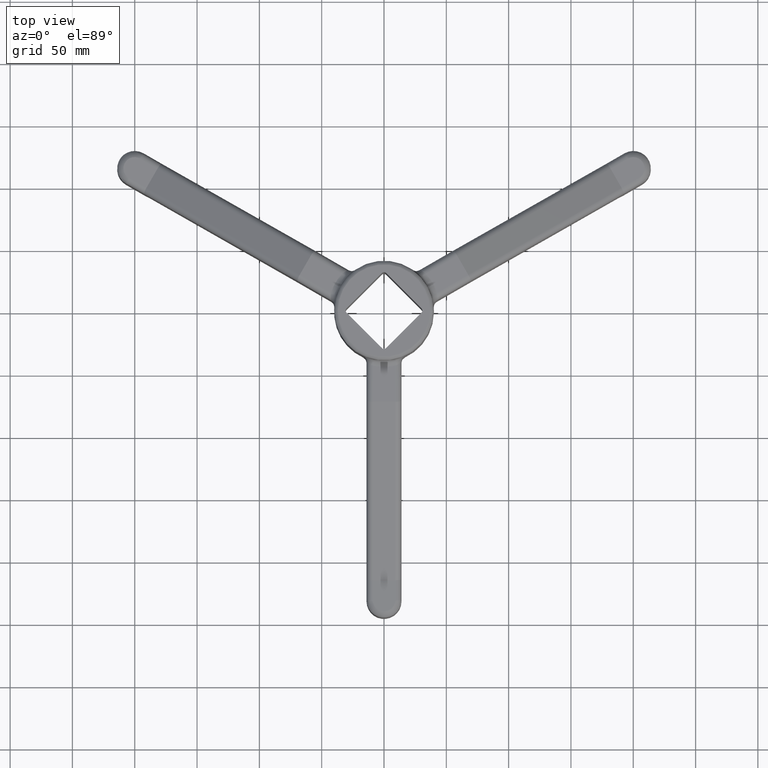
[diagram: clean part render]
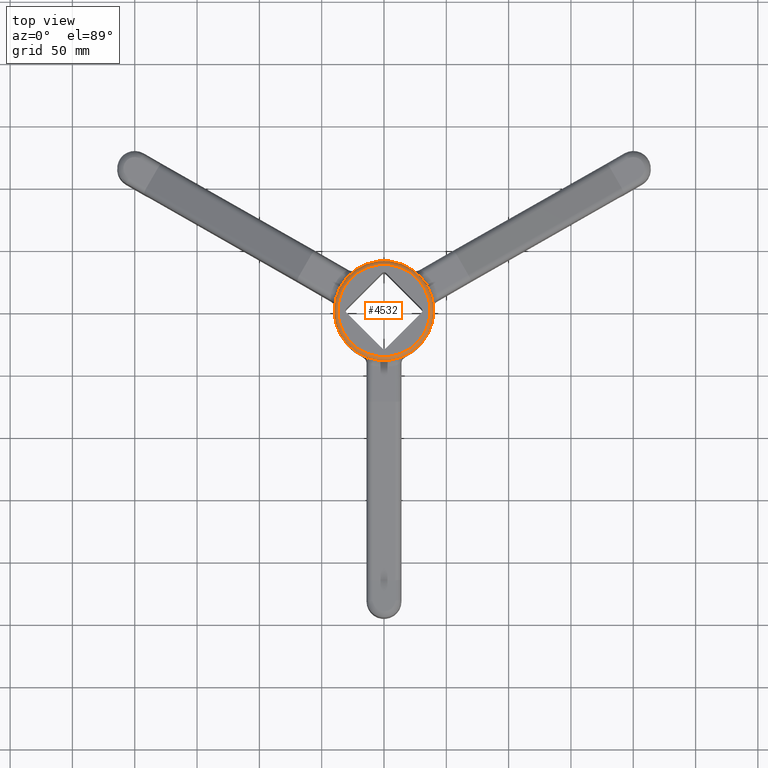
[diagram: same view with one face highlighted and labeled with its STEP entity id]
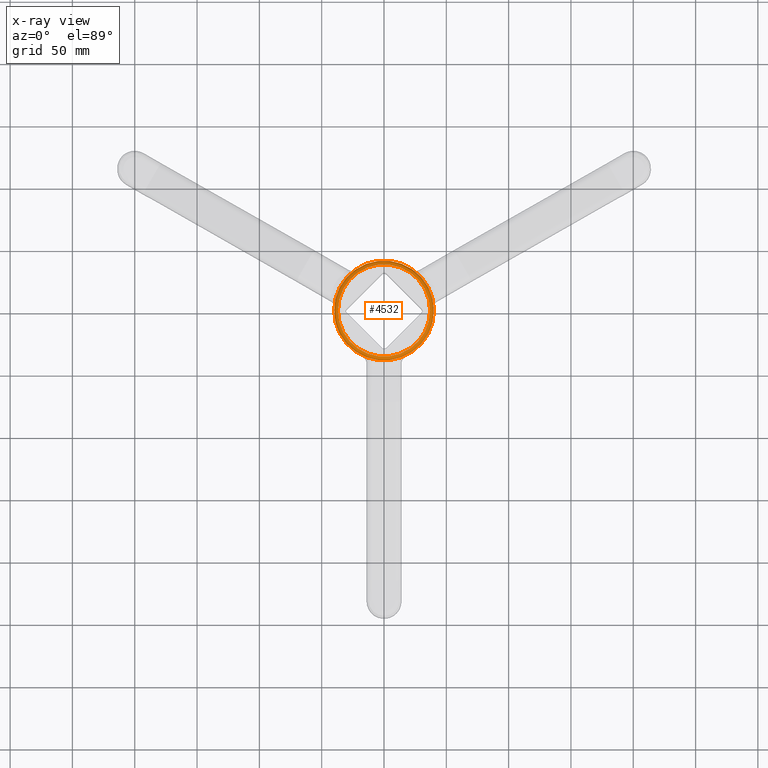
[diagram: x-ray of the same camera — body ghosted, the highlighted face saturated]
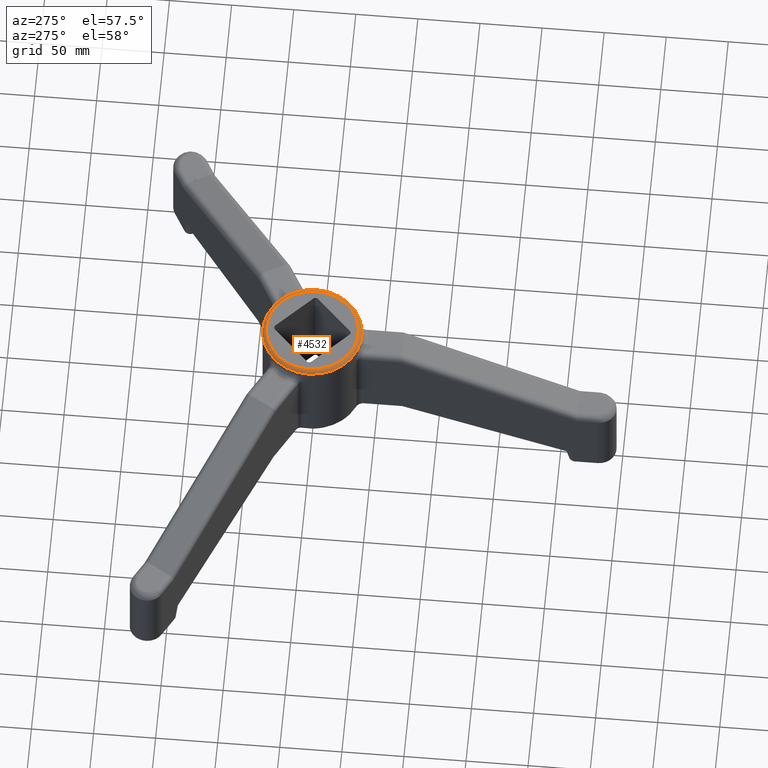
[diagram: same view with one face highlighted and labeled with its STEP entity id]
A machine part, top view. The second image highlights one B-rep face of the part: STEP entity #4532.
The next image is the same camera in x-ray: the body ghosted, the highlighted face saturated — about 0% of this face is hidden behind the body in this view.
A second angle (auxiliary view) of the same face is appended — the face is thin or edge-on in the first view.
In plain terms, the highlighted face is a freeform B-spline surface patch.
Its self-contained STEP definition (entity closure, byte-faithful):
#4211=CARTESIAN_POINT('',(37.0,0.0,0.0));
#4212=VERTEX_POINT('',#4211);
#4213=CARTESIAN_POINT('',(-37.0,0.0,0.0));
#4214=VERTEX_POINT('',#4213);
#4215=CARTESIAN_POINT('',(0.0,0.0,0.0));
#4216=DIRECTION('',(0.0,6.123234E-017,1.0));
#4217=DIRECTION('',(1.0,0.0,0.0));
#4218=AXIS2_PLACEMENT_3D('',#4215,#4216,#4217);
#4219=CIRCLE('',#4218,37.0);
#4220=EDGE_CURVE('',#4212,#4214,#4219,.T.);
#4222=CARTESIAN_POINT('',(0.0,0.0,0.0));
#4223=DIRECTION('',(0.0,6.123234E-017,1.0));
#4224=DIRECTION('',(1.0,0.0,0.0));
#4225=AXIS2_PLACEMENT_3D('',#4222,#4223,#4224);
#4226=CIRCLE('',#4225,37.0);
#4227=EDGE_CURVE('',#4214,#4212,#4226,.T.);
#4242=CARTESIAN_POINT('',(37.0,0.0,0.0));
#4243=CARTESIAN_POINT('',(37.390180644032256,-1.462943E-033,-2.389167E-017));
#4244=CARTESIAN_POINT('',(38.179083452029829,-9.559368E-018,-0.156116328347340));
#4245=CARTESIAN_POINT('',(39.176238734418838,-5.044083E-017,-0.823761265581155));
#4246=CARTESIAN_POINT('',(39.843883671652662,-1.114990E-016,-1.820916547970177));
#4247=CARTESIAN_POINT('',(40.0,-1.598053E-016,-2.609819355967743));
#4248=CARTESIAN_POINT('',(40.0,-1.836970E-016,-3.0));
#4249=CARTESIAN_POINT('',(37.0,2.417756128129161,-1.487460E-016));
#4250=CARTESIAN_POINT('',(37.390180644032256,2.443252388755820,-1.787957E-016));
#4251=CARTESIAN_POINT('',(38.179083452029829,2.494803053581075,-0.156116328347340));
#4252=CARTESIAN_POINT('',(39.176238734418838,2.559961926410599,-0.823761265581155));
#4253=CARTESIAN_POINT('',(39.843883671652662,2.603589024746045,-1.820916547970177));
#4254=CARTESIAN_POINT('',(40.0,2.613790408788283,-2.609819355967743));
#4255=CARTESIAN_POINT('',(40.0,2.613790408788283,-3.0));
#4256=CARTESIAN_POINT('',(36.523417015287194,7.265900440590730,-3.674519E-016));
#4257=CARTESIAN_POINT('',(36.908571890240800,7.342522432844352,-8.444300E-016));
#4258=CARTESIAN_POINT('',(37.687313139998281,7.497443764201455,-0.156116328347340));
#4259=CARTESIAN_POINT('',(38.671624442908794,7.693260818408145,-0.823761265581157));
#4260=CARTESIAN_POINT('',(39.330669698604403,7.824370052019105,-1.820916547970179));
#4261=CARTESIAN_POINT('',(39.484775151661822,7.855027503341328,-2.609819355967745));
#4262=CARTESIAN_POINT('',(39.484775151661822,7.855027503341328,-3.000000000000001));
#4263=CARTESIAN_POINT('',(34.755453753897456,13.089692557015482,-1.024179E-015));
#4264=CARTESIAN_POINT('',(35.121964708744187,13.227728899504143,-5.295534E-016));
#4265=CARTESIAN_POINT('',(35.863009980627425,13.506823364748861,-0.156116328347339));
#4266=CARTESIAN_POINT('',(36.799674421236219,13.859592447940106,-0.823761265581154));
#4267=CARTESIAN_POINT('',(37.426817738534965,14.095788852416829,-1.820916547970176));
#4268=CARTESIAN_POINT('',(37.573463517726985,14.151018980557284,-2.609819355967744));
#4269=CARTESIAN_POINT('',(37.573463517726985,14.151018980557284,-3.000000000000001));
#4270=CARTESIAN_POINT('',(32.683421641475491,17.469693304101007,-7.474769E-016));
#4271=CARTESIAN_POINT('',(33.028082141617340,17.653918606383176,-2.900526E-016));
#4272=CARTESIAN_POINT('',(33.724948171561351,18.026402122665925,-0.156116328347339));
#4273=CARTESIAN_POINT('',(34.605771050922044,18.497212851311865,-0.823761265581153));
#4274=CARTESIAN_POINT('',(35.195525672284440,18.812443994271625,-1.820916547970177));
#4275=CARTESIAN_POINT('',(35.333428801595133,18.886154923352436,-2.609819355967744));
#4276=CARTESIAN_POINT('',(35.333428801595133,18.886154923352436,-3.000000000000001));
#4277=CARTESIAN_POINT('',(30.192962802888978,21.625716695433379,-1.595709E-015));
#4278=CARTESIAN_POINT('',(30.511360361582852,21.853769021592388,-1.558981E-015));
#4279=CARTESIAN_POINT('',(31.155125581500844,22.314866011483943,-0.156116328347341));
#4280=CARTESIAN_POINT('',(31.968830239605573,22.897682163870410,-0.823761265581157));
#4281=CARTESIAN_POINT('',(32.513645881644450,23.287906495377420,-1.820916547970177));
#4282=CARTESIAN_POINT('',(32.641040867988089,23.379153184252303,-2.609819355967745));
#4283=CARTESIAN_POINT('',(32.641040867988089,23.379153184252303,-3.000000000000001));
#4284=CARTESIAN_POINT('',(26.331197878916409,26.332368396091731,-1.880487E-015));
#4285=CARTESIAN_POINT('',(26.608871493687658,26.610054354461507,-2.096223E-015));
#4286=CARTESIAN_POINT('',(27.170297330028657,27.171505148215644,-0.156116328347342));
#4287=CARTESIAN_POINT('',(27.879926872098707,27.881166235890689,-0.823761265581157));
#4288=CARTESIAN_POINT('',(28.355059060076020,28.356319545215726,-1.820916547970180));
#4289=CARTESIAN_POINT('',(28.466159869098817,28.467425293072132,-2.609819355967745));
#4290=CARTESIAN_POINT('',(28.466159869098817,28.467425293072132,-3.000000000000002));
#4291=CARTESIAN_POINT('',(20.688715596498181,30.962483522967680,-1.597358E-015));
#4292=CARTESIAN_POINT('',(20.906886849893905,31.288996003017132,-1.406155E-015));
#4293=CARTESIAN_POINT('',(21.348005385784191,31.949168710958965,-0.156116328347341));
#4294=CARTESIAN_POINT('',(21.905569224781267,32.783612062332203,-0.823761265581157));
#4295=CARTESIAN_POINT('',(22.278885879534585,33.342313288502346,-1.820916547970178));
#4296=CARTESIAN_POINT('',(22.366179023241280,33.472955159965068,-2.609819355967746));
#4297=CARTESIAN_POINT('',(22.366179023241280,33.472955159965068,-3.000000000000003));
#4298=CARTESIAN_POINT('',(14.250531465442570,34.403951443202601,-2.388224E-015));
#4299=CARTESIAN_POINT('',(14.400809345036848,34.766755657563778,-1.804272E-015));
#4300=CARTESIAN_POINT('',(14.704654866348886,35.500306303503102,-0.156116328347341));
#4301=CARTESIAN_POINT('',(15.088708723852040,36.427497706655643,-0.823761265581153));
#4302=CARTESIAN_POINT('',(15.345851836981611,37.048298355355435,-1.820916547970177));
#4303=CARTESIAN_POINT('',(15.405979962640611,37.193461019678502,-2.609819355967744));
#4304=CARTESIAN_POINT('',(15.405979962640611,37.193461019678502,-3.000000000000001));
#4305=CARTESIAN_POINT('',(7.264880526781480,36.522966921727516,-2.172423E-015));
#4306=CARTESIAN_POINT('',(7.341491763612750,36.908117050254234,-2.636577E-015));
#4307=CARTESIAN_POINT('',(7.496391348676125,37.686848703252984,-0.156116328347342));
#4308=CARTESIAN_POINT('',(7.692180916060045,38.671147876077811,-0.823761265581160));
#4309=CARTESIAN_POINT('',(7.823271745879357,39.330185010079184,-1.820916547970181));
#4310=CARTESIAN_POINT('',(7.853924893817817,39.484288564029740,-2.609819355967748));
#4311=CARTESIAN_POINT('',(7.853924893817817,39.484288564029740,-3.000000000000004));
#4312=CARTESIAN_POINT('',(-0.000002084987977,37.238513119404544,-2.244760E-015));
#4313=CARTESIAN_POINT('',(-0.000002106975057,37.631208985127046,-1.997927E-015));
#4314=CARTESIAN_POINT('',(-0.000002151430539,38.425197297709545,-0.156116328347342));
#4315=CARTESIAN_POINT('',(-0.000002207621262,39.428780542718393,-0.823761265581156));
#4316=CARTESIAN_POINT('',(-0.000002245243742,40.100729319861244,-1.820916547970179));
#4317=CARTESIAN_POINT('',(-0.000002254041056,40.257852020977886,-2.609819355967745));
#4318=CARTESIAN_POINT('',(-0.000002254041056,40.257852020977886,-3.000000000000002));
#4319=CARTESIAN_POINT('',(-7.264872186829554,36.522980600654307,-2.171215E-015));
#4320=CARTESIAN_POINT('',(-7.341483335712505,36.908130873431091,-2.664465E-015));
#4321=CARTESIAN_POINT('',(-7.496382742953951,37.686862818087775,-0.156116328347342));
#4322=CARTESIAN_POINT('',(-7.692172085574976,38.671162359561635,-0.823761265581159));
#4323=CARTESIAN_POINT('',(-7.823262764904368,39.330199740391819,-1.820916547970180));
#4324=CARTESIAN_POINT('',(-7.853915877653573,39.484303352058696,-2.609819355967746));
#4325=CARTESIAN_POINT('',(-7.853915877653573,39.484303352058696,-3.000000000000002));
#4326=CARTESIAN_POINT('',(-14.250560655274246,34.403896727495379,-2.393058E-015));
#4327=CARTESIAN_POINT('',(-14.400838842687643,34.766700364856284,-1.692723E-015));
#4328=CARTESIAN_POINT('',(-14.704684986376437,35.500249844163854,-0.156116328347341));
#4329=CARTESIAN_POINT('',(-15.088739630549721,36.427439772720277,-0.823761265581153));
#4330=CARTESIAN_POINT('',(-15.345883270393994,37.048239434104794,-1.820916547970177));
#4331=CARTESIAN_POINT('',(-15.406011519215399,37.193401867562592,-2.609819355967745));
#4332=CARTESIAN_POINT('',(-15.406011519215399,37.193401867562592,-3.000000000000003));
#4333=CARTESIAN_POINT('',(-20.688607177123394,30.962688706869827,-1.579229E-015));
#4334=CARTESIAN_POINT('',(-20.906777287190973,31.289203350670270,-1.824463E-015));
#4335=CARTESIAN_POINT('',(-21.347893511396151,31.949380433481192,-0.156116328347342));
#4336=CARTESIAN_POINT('',(-21.905454428475597,32.783829314589902,-0.823761265581157));
#4337=CARTESIAN_POINT('',(-22.278769126860066,33.342534243192283,-1.820916547970180));
#4338=CARTESIAN_POINT('',(-22.366061813106374,33.473176980399799,-2.609819355967747));
#4339=CARTESIAN_POINT('',(-22.366061813106374,33.473176980399799,-3.000000000000002));
#4340=CARTESIAN_POINT('',(-26.331602366583869,26.331602376190403,-1.948166E-015));
#4341=CARTESIAN_POINT('',(-26.609280246848598,26.609280256556438,-1.858262E-015));
#4342=CARTESIAN_POINT('',(-27.170714707553280,27.170714717465955,-0.156116328347341));
#4343=CARTESIAN_POINT('',(-27.880355150623725,27.880355160795276,-0.823761265581156));
#4344=CARTESIAN_POINT('',(-28.355494637361673,28.355494647706585,-1.820916547970179));
#4345=CARTESIAN_POINT('',(-28.466597153063638,28.466597163449084,-2.609819355967745));
#4346=CARTESIAN_POINT('',(-28.466597153063638,28.466597163449084,-3.000000000000003));
#4347=CARTESIAN_POINT('',(-30.962688779954686,20.688607211782141,-1.286247E-015));
#4348=CARTESIAN_POINT('',(-31.289203424525844,20.906777322215216,-1.985223E-015));
#4349=CARTESIAN_POINT('',(-31.949380508895068,21.347893547159373,-0.156116328347342));
#4350=CARTESIAN_POINT('',(-32.783829391973399,21.905454465172891,-0.823761265581160));
#4351=CARTESIAN_POINT('',(-33.342534321894576,22.278769164182759,-1.820916547970180));
#4352=CARTESIAN_POINT('',(-33.473177059410460,22.366061850575296,-2.609819355967745));
#4353=CARTESIAN_POINT('',(-33.473177059410460,22.366061850575296,-3.000000000000000));
#4354=CARTESIAN_POINT('',(-34.403896444762395,14.250560507032731,-9.004505E-016));
#4355=CARTESIAN_POINT('',(-34.766700079141764,14.400838692882855,-1.027678E-016));
#4356=CARTESIAN_POINT('',(-35.500249552420982,14.704684833410894,-0.156116328347340));
#4357=CARTESIAN_POINT('',(-36.427439473357715,15.088739473589039,-0.823761265581151));
#4358=CARTESIAN_POINT('',(-37.048239129640464,15.345883110758368,-1.820916547970176));
#4359=CARTESIAN_POINT('',(-37.193401561905311,15.406011358954297,-2.609819355967743));
#4360=CARTESIAN_POINT('',(-37.193401561905311,15.406011358954297,-3.000000000000002));
#4361=CARTESIAN_POINT('',(-36.522981658501365,7.264872745136930,-4.410212E-016));
#4362=CARTESIAN_POINT('',(-36.908131942433592,7.341483899907470,-8.699207E-016));
#4363=CARTESIAN_POINT('',(-37.686863909645382,7.496383319052971,-0.156116328347340));
#4364=CARTESIAN_POINT('',(-38.671163479628362,7.692172676720467,-0.823761265581158));
#4365=CARTESIAN_POINT('',(-39.330200879546830,7.823263366124213,-1.820916547970178));
#4366=CARTESIAN_POINT('',(-39.484304495677137,7.853916481229115,-2.609819355967745));
#4367=CARTESIAN_POINT('',(-39.484304495677137,7.853916481229115,-3.0));
#4368=CARTESIAN_POINT('',(-37.238509170749303,1.576517E-014,-6.902533E-031));
#4369=CARTESIAN_POINT('',(-37.631204994831577,1.532108E-014,1.127035E-016));
#4370=CARTESIAN_POINT('',(-38.425193223222045,1.598721E-014,-0.156116328347340));
#4371=CARTESIAN_POINT('',(-39.428776361814059,1.554312E-014,-0.823761265581154));
#4372=CARTESIAN_POINT('',(-40.100725067705575,1.509903E-014,-1.820916547970176));
#4373=CARTESIAN_POINT('',(-40.257847752161418,1.687539E-014,-2.609819355967742));
#4374=CARTESIAN_POINT('',(-40.257847752161418,1.687539E-014,-3.000000000000000));
#4375=CARTESIAN_POINT('',(-36.522981658501365,-7.264872745136943,4.410212E-016));
#4376=CARTESIAN_POINT('',(-36.908131942433599,-7.341483899907479,2.757565E-016));
#4377=CARTESIAN_POINT('',(-37.686863909645382,-7.496383319052983,-0.156116328347339));
#4378=CARTESIAN_POINT('',(-38.671163479628369,-7.692172676720476,-0.823761265581155));
#4379=CARTESIAN_POINT('',(-39.330200879546830,-7.823263366124222,-1.820916547970177));
#4380=CARTESIAN_POINT('',(-39.484304495677151,-7.853916481229129,-2.609819355967743));
#4381=CARTESIAN_POINT('',(-39.484304495677151,-7.853916481229129,-3.000000000000000));
#4382=CARTESIAN_POINT('',(-34.403896444762395,-14.250560507032704,9.004505E-016));
#4383=CARTESIAN_POINT('',(-34.766700079141756,-14.400838692882836,6.435939E-016));
#4384=CARTESIAN_POINT('',(-35.500249552420968,-14.704684833410870,-0.156116328347339));
#4385=CARTESIAN_POINT('',(-36.427439473357708,-15.088739473589024,-0.823761265581154));
#4386=CARTESIAN_POINT('',(-37.048239129640478,-15.345883110758354,-1.820916547970177));
#4387=CARTESIAN_POINT('',(-37.193401561905297,-15.406011358954274,-2.609819355967743));
#4388=CARTESIAN_POINT('',(-37.193401561905297,-15.406011358954274,-2.999999999999999));
#4389=CARTESIAN_POINT('',(-30.962688779954703,-20.688607211782127,1.286247E-015));
#4390=CARTESIAN_POINT('',(-31.289203424525869,-20.906777322215195,1.232485E-015));
#4391=CARTESIAN_POINT('',(-31.949380508895079,-21.347893547159359,-0.156116328347339));
#4392=CARTESIAN_POINT('',(-32.783829391973441,-21.905454465172859,-0.823761265581153));
#4393=CARTESIAN_POINT('',(-33.342534321894590,-22.278769164182734,-1.820916547970176));
#4394=CARTESIAN_POINT('',(-33.473177059410489,-22.366061850575274,-2.609819355967741));
#4395=CARTESIAN_POINT('',(-33.473177059410489,-22.366061850575274,-2.999999999999998));
#4396=CARTESIAN_POINT('',(-26.331602366583844,-26.331602376190421,1.948166E-015));
#4397=CARTESIAN_POINT('',(-26.609280246848577,-26.609280256556463,2.056100E-015));
#4398=CARTESIAN_POINT('',(-27.170714707553273,-27.170714717465970,-0.156116328347337));
#4399=CARTESIAN_POINT('',(-27.880355150623693,-27.880355160795311,-0.823761265581153));
#4400=CARTESIAN_POINT('',(-28.355494637361659,-28.355494647706600,-1.820916547970174));
#4401=CARTESIAN_POINT('',(-28.466597153063621,-28.466597163449109,-2.609819355967742));
#4402=CARTESIAN_POINT('',(-28.466597153063621,-28.466597163449109,-2.999999999999999));
#4403=CARTESIAN_POINT('',(-20.688607177123433,-30.962688706869788,1.579229E-015));
#4404=CARTESIAN_POINT('',(-20.906777287191012,-31.289203350670238,1.940388E-015));
#4405=CARTESIAN_POINT('',(-21.347893511396187,-31.949380433481167,-0.156116328347337));
#4406=CARTESIAN_POINT('',(-21.905454428475636,-32.783829314589866,-0.823761265581152));
#4407=CARTESIAN_POINT('',(-22.278769126860119,-33.342534243192262,-1.820916547970173));
#4408=CARTESIAN_POINT('',(-22.366061813106413,-33.473176980399771,-2.609819355967741));
#4409=CARTESIAN_POINT('',(-22.366061813106413,-33.473176980399771,-2.999999999999998));
#4410=CARTESIAN_POINT('',(-14.250560655274237,-34.403896727495386,2.393058E-015));
#4411=CARTESIAN_POINT('',(-14.400838842687634,-34.766700364856284,2.146792E-015));
#4412=CARTESIAN_POINT('',(-14.704684986376433,-35.500249844163854,-0.156116328347337));
#4413=CARTESIAN_POINT('',(-15.088739630549714,-36.427439772720263,-0.823761265581154));
#4414=CARTESIAN_POINT('',(-15.345883270393980,-37.048239434104815,-1.820916547970175));
#4415=CARTESIAN_POINT('',(-15.406011519215394,-37.193401867562578,-2.609819355967741));
#4416=CARTESIAN_POINT('',(-15.406011519215394,-37.193401867562578,-2.999999999999997));
#4417=CARTESIAN_POINT('',(-7.264872186829575,-36.522980600654293,2.171215E-015));
#4418=CARTESIAN_POINT('',(-7.341483335712527,-36.908130873431084,1.989910E-015));
#4419=CARTESIAN_POINT('',(-7.496382742953970,-37.686862818087761,-0.156116328347338));
#4420=CARTESIAN_POINT('',(-7.692172085574995,-38.671162359561642,-0.823761265581154));
#4421=CARTESIAN_POINT('',(-7.823262764904396,-39.330199740391798,-1.820916547970175));
#4422=CARTESIAN_POINT('',(-7.853915877653595,-39.484303352058689,-2.609819355967742));
#4423=CARTESIAN_POINT('',(-7.853915877653595,-39.484303352058689,-2.999999999999998));
#4424=CARTESIAN_POINT('',(-0.000002084988021,-37.238513119404551,2.244760E-015));
#4425=CARTESIAN_POINT('',(-0.000002106975101,-37.631208985127053,2.411032E-015));
#4426=CARTESIAN_POINT('',(-0.000002151430585,-38.425197297709559,-0.156116328347337));
#4427=CARTESIAN_POINT('',(-0.000002207621310,-39.428780542718386,-0.823761265581151));
#4428=CARTESIAN_POINT('',(-0.000002245243787,-40.100729319861244,-1.820916547970173));
#4429=CARTESIAN_POINT('',(-0.000002254041104,-40.257852020977886,-2.609819355967740));
#4430=CARTESIAN_POINT('',(-0.000002254041104,-40.257852020977886,-2.999999999999996));
#4431=CARTESIAN_POINT('',(7.264880526781510,-36.522966921727487,2.172423E-015));
#4432=CARTESIAN_POINT('',(7.341491763612780,-36.908117050254212,1.891838E-015));
#4433=CARTESIAN_POINT('',(7.496391348676157,-37.686848703252963,-0.156116328347338));
#4434=CARTESIAN_POINT('',(7.692180916060078,-38.671147876077789,-0.823761265581154));
#4435=CARTESIAN_POINT('',(7.823271745879382,-39.330185010079163,-1.820916547970176));
#4436=CARTESIAN_POINT('',(7.853924893817847,-39.484288564029725,-2.609819355967741));
#4437=CARTESIAN_POINT('',(7.853924893817847,-39.484288564029725,-2.999999999999999));
#4438=CARTESIAN_POINT('',(14.250531465442567,-34.403951443202622,2.388224E-015));
#4439=CARTESIAN_POINT('',(14.400809345036848,-34.766755657563785,2.318459E-015));
#4440=CARTESIAN_POINT('',(14.704654866348884,-35.500306303503109,-0.156116328347337));
#4441=CARTESIAN_POINT('',(15.088708723852042,-36.427497706655657,-0.823761265581153));
#4442=CARTESIAN_POINT('',(15.345851836981616,-37.048298355355456,-1.820916547970174));
#4443=CARTESIAN_POINT('',(15.405979962640615,-37.193461019678509,-2.609819355967741));
#4444=CARTESIAN_POINT('',(15.405979962640615,-37.193461019678509,-2.999999999999997));
#4445=CARTESIAN_POINT('',(20.688715596498152,-30.962483522967684,1.597358E-015));
#4446=CARTESIAN_POINT('',(20.906886849893880,-31.288996003017136,1.351792E-015));
#4447=CARTESIAN_POINT('',(21.348005385784166,-31.949168710958961,-0.156116328347338));
#4448=CARTESIAN_POINT('',(21.905569224781249,-32.783612062332210,-0.823761265581154));
#4449=CARTESIAN_POINT('',(22.278885879534556,-33.342313288502332,-1.820916547970176));
#4450=CARTESIAN_POINT('',(22.366179023241248,-33.472955159965061,-2.609819355967741));
#4451=CARTESIAN_POINT('',(22.366179023241248,-33.472955159965061,-2.999999999999997));
#4452=CARTESIAN_POINT('',(26.331197878916406,-26.332368396091731,1.880487E-015));
#4453=CARTESIAN_POINT('',(26.608871493687666,-26.610054354461500,2.032613E-015));
#4454=CARTESIAN_POINT('',(27.170297330028660,-27.171505148215648,-0.156116328347337));
#4455=CARTESIAN_POINT('',(27.879926872098700,-27.881166235890667,-0.823761265581153));
#4456=CARTESIAN_POINT('',(28.355059060076023,-28.356319545215726,-1.820916547970173));
#4457=CARTESIAN_POINT('',(28.466159869098817,-28.467425293072139,-2.609819355967741));
#4458=CARTESIAN_POINT('',(28.466159869098817,-28.467425293072139,-2.999999999999998));
#4459=CARTESIAN_POINT('',(30.192962802888992,-21.625716695433383,1.595709E-015));
#4460=CARTESIAN_POINT('',(30.511360361582852,-21.853769021592395,1.934603E-015));
#4461=CARTESIAN_POINT('',(31.155125581500840,-22.314866011483947,-0.156116328347337));
#4462=CARTESIAN_POINT('',(31.968830239605595,-22.897682163870414,-0.823761265581152));
#4463=CARTESIAN_POINT('',(32.513645881644450,-23.287906495377420,-1.820916547970175));
#4464=CARTESIAN_POINT('',(32.641040867988096,-23.379153184252310,-2.609819355967741));
#4465=CARTESIAN_POINT('',(32.641040867988096,-23.379153184252310,-2.999999999999999));
#4466=CARTESIAN_POINT('',(32.683421641475462,-17.469693304101035,7.474769E-016));
#4467=CARTESIAN_POINT('',(33.028082141617325,-17.653918606383201,5.864827E-016));
#4468=CARTESIAN_POINT('',(33.724948171561337,-18.026402122665953,-0.156116328347339));
#4469=CARTESIAN_POINT('',(34.605771050921987,-18.497212851311897,-0.823761265581155));
#4470=CARTESIAN_POINT('',(35.195525672284433,-18.812443994271657,-1.820916547970176));
#4471=CARTESIAN_POINT('',(35.333428801595097,-18.886154923352471,-2.609819355967743));
#4472=CARTESIAN_POINT('',(35.333428801595097,-18.886154923352471,-2.999999999999998));
#4473=CARTESIAN_POINT('',(34.755453753897484,-13.089692557015471,1.024179E-015));
#4474=CARTESIAN_POINT('',(35.121964708744201,-13.227728899504134,1.039294E-015));
#4475=CARTESIAN_POINT('',(35.863009980627446,-13.506823364748856,-0.156116328347339));
#4476=CARTESIAN_POINT('',(36.799674421236240,-13.859592447940086,-0.823761265581153));
#4477=CARTESIAN_POINT('',(37.426817738534993,-14.095788852416822,-1.820916547970177));
#4478=CARTESIAN_POINT('',(37.573463517726992,-14.151018980557268,-2.609819355967743));
#4479=CARTESIAN_POINT('',(37.573463517726992,-14.151018980557268,-3.000000000000000));
#4480=CARTESIAN_POINT('',(36.523417015287158,-7.265900440590753,3.674519E-016));
#4481=CARTESIAN_POINT('',(36.908571890240779,-7.342522432844373,1.260354E-016));
#4482=CARTESIAN_POINT('',(37.687313139998238,-7.497443764201476,-0.156116328347339));
#4483=CARTESIAN_POINT('',(38.671624442908779,-7.693260818408171,-0.823761265581156));
#4484=CARTESIAN_POINT('',(39.330669698604353,-7.824370052019132,-1.820916547970177));
#4485=CARTESIAN_POINT('',(39.484775151661793,-7.855027503341354,-2.609819355967743));
#4486=CARTESIAN_POINT('',(39.484775151661793,-7.855027503341354,-2.999999999999999));
#4487=CARTESIAN_POINT('',(37.0,-2.417756128129173,1.487460E-016));
#4488=CARTESIAN_POINT('',(37.390180644032256,-2.443252388755833,1.310123E-016));
#4489=CARTESIAN_POINT('',(38.179083452029829,-2.494803053581088,-0.156116328347340));
#4490=CARTESIAN_POINT('',(39.176238734418838,-2.559961926410611,-0.823761265581155));
#4491=CARTESIAN_POINT('',(39.843883671652662,-2.603589024746059,-1.820916547970177));
#4492=CARTESIAN_POINT('',(40.0,-2.613790408788296,-2.609819355967743));
#4493=CARTESIAN_POINT('',(40.0,-2.613790408788296,-3.0));
#4494=CARTESIAN_POINT('',(37.0,-9.062386E-015,0.0));
#4495=CARTESIAN_POINT('',(37.390180644032256,-9.157953E-015,-2.389167E-017));
#4496=CARTESIAN_POINT('',(38.179083452029829,-9.360738E-015,-0.156116328347340));
#4497=CARTESIAN_POINT('',(39.176238734418838,-9.645852E-015,-0.823761265581155));
#4498=CARTESIAN_POINT('',(39.843883671652662,-9.870436E-015,-1.820916547970177));
#4499=CARTESIAN_POINT('',(40.0,-9.956980E-015,-2.609819355967743));
#4500=CARTESIAN_POINT('',(40.0,-9.980871E-015,-3.0));
#4501=B_SPLINE_SURFACE_WITH_KNOTS('',3,3,((#4242,#4249,#4256,#4263,#4270,#4277,#4284,#4291,#4298,#4305,#4312,#4319,#4326,#4333,#4340,#4347,#4354,#4361,#4368,#4375,#4382,#4389,#4396,#4403,#4410,#4417,#4424,#4431,#4438,#4445,#4452,#4459,#4466,#4473,#4480,#4487,#4494),(#4243,#4250,#4257,#4264,#4271,#4278,#4285,#4292,#4299,#4306,#4313,#4320,#4327,#4334,#4341,#4348,#4355,#4362,#4369,#4376,#4383,#4390,#4397,#4404,#4411,#4418,#4425,#4432,#4439,#4446,#4453,#4460,#4467,#4474,#4481,#4488,#4495),(#4244,#4251,#4258,#4265,#4272,#4279,#4286,#4293,#4300,#4307,#4314,#4321,#4328,#4335,#4342,#4349,#4356,#4363,#4370,#4377,#4384,#4391,#4398,#4405,#4412,#4419,#4426,#4433,#4440,#4447,#4454,#4461,#4468,#4475,#4482,#4489,#4496),(#4245,#4252,#4259,#4266,#4273,#4280,#4287,#4294,#4301,#4308,#4315,#4322,#4329,#4336,#4343,#4350,#4357,#4364,#4371,#4378,#4385,#4392,#4399,#4406,#4413,#4420,#4427,#4434,#4441,#4448,#4455,#4462,#4469,#4476,#4483,#4490,#4497),(#4246,#4253,#4260,#4267,#4274,#4281,#4288,#4295,#4302,#4309,#4316,#4323,#4330,#4337,#4344,#4351,#4358,#4365,#4372,#4379,#4386,#4393,#4400,#4407,#4414,#4421,#4428,#4435,#4442,#4449,#4456,#4463,#4470,#4477,#4484,#4491,#4498),(#4247,#4254,#4261,#4268,#4275,#4282,#4289,#4296,#4303,#4310,#4317,#4324,#4331,#4338,#4345,#4352,#4359,#4366,#4373,#4380,#4387,#4394,#4401,#4408,#4415,#4422,#4429,#4436,#4443,#4450,#4457,#4464,#4471,#4478,#4485,#4492,#4499),(#4248,#4255,#4262,#4269,#4276,#4283,#4290,#4297,#4304,#4311,#4318,#4325,#4332,#4339,#4346,#4353,#4360,#4367,#4374,#4381,#4388,#4395,#4402,#4409,#4416,#4423,#4430,#4437,#4444,#4451,#4458,#4465,#4472,#4479,#4486,#4493,#4500)),.UNSPECIFIED.,.F.,.T.,.U.,(4,1,1,1,4),(4,1,1,1,1,1,1,1,1,1,1,1,1,1,1,1,1,1,1,1,1,1,1,1,1,1,1,1,1,1,1,1,1,1,4),(0.0,1.170541932096767,2.341083864193541,3.511625796290308,4.682167728387078),(0.0,7.607737932875645,15.215475865751293,19.023932284736475,22.832388703721652,30.440126636597295,38.047864569472935,45.655602502348586,53.263340435224237,60.871078368099880,68.478816300975524,76.086554233851160,83.694292166726797,91.302030099602462,98.909768032478127,106.517505965353760,114.125243898229390,121.732981831105050,129.340719763980700,136.948457696856340,144.556195629731970,152.163933562607610,159.771671495483300,167.379409428358910,174.987147361234580,182.594885294110240,190.202623226985850,197.810361159861510,205.418099092737150,213.025837025612790,220.633574958488450,224.442031377473630,228.250487796458770,235.858225729334440,243.465963662210100),.UNSPECIFIED.);
#4502=ORIENTED_EDGE('',*,*,#4227,.F.);
#4503=ORIENTED_EDGE('',*,*,#4220,.F.);
#4504=CARTESIAN_POINT('',(40.0,-1.836970E-016,-3.0));
#4505=VERTEX_POINT('',#4504);
#4506=CARTESIAN_POINT('',(37.0,-1.836970E-016,-3.0));
#4507=DIRECTION('',(0.0,1.0,-6.123234E-017));
#4508=DIRECTION('',(0.0,6.123234E-017,1.0));
#4509=AXIS2_PLACEMENT_3D('',#4506,#4507,#4508);
#4510=CIRCLE('',#4509,3.0);
#4511=EDGE_CURVE('',#4212,#4505,#4510,.T.);
#4512=ORIENTED_EDGE('',*,*,#4511,.T.);
#4513=CARTESIAN_POINT('',(-40.0,-1.836970E-016,-3.0));
#4514=VERTEX_POINT('',#4513);
#4515=CARTESIAN_POINT('',(0.0,-1.836970E-016,-3.0));
#4516=DIRECTION('',(0.0,6.123234E-017,1.0));
#4517=DIRECTION('',(1.0,0.0,0.0));
#4518=AXIS2_PLACEMENT_3D('',#4515,#4516,#4517);
#4519=CIRCLE('',#4518,40.0);
#4520=EDGE_CURVE('',#4505,#4514,#4519,.T.);
#4521=ORIENTED_EDGE('',*,*,#4520,.T.);
#4522=CARTESIAN_POINT('',(0.0,-1.836970E-016,-3.0));
#4523=DIRECTION('',(0.0,6.123234E-017,1.0));
#4524=DIRECTION('',(1.0,0.0,0.0));
#4525=AXIS2_PLACEMENT_3D('',#4522,#4523,#4524);
#4526=CIRCLE('',#4525,40.0);
#4527=EDGE_CURVE('',#4514,#4505,#4526,.T.);
#4528=ORIENTED_EDGE('',*,*,#4527,.T.);
#4529=ORIENTED_EDGE('',*,*,#4511,.F.);
#4530=EDGE_LOOP('',(#4502,#4503,#4512,#4521,#4528,#4529));
#4531=FACE_OUTER_BOUND('',#4530,.T.);
#4532=ADVANCED_FACE('',(#4531),#4501,.T.);